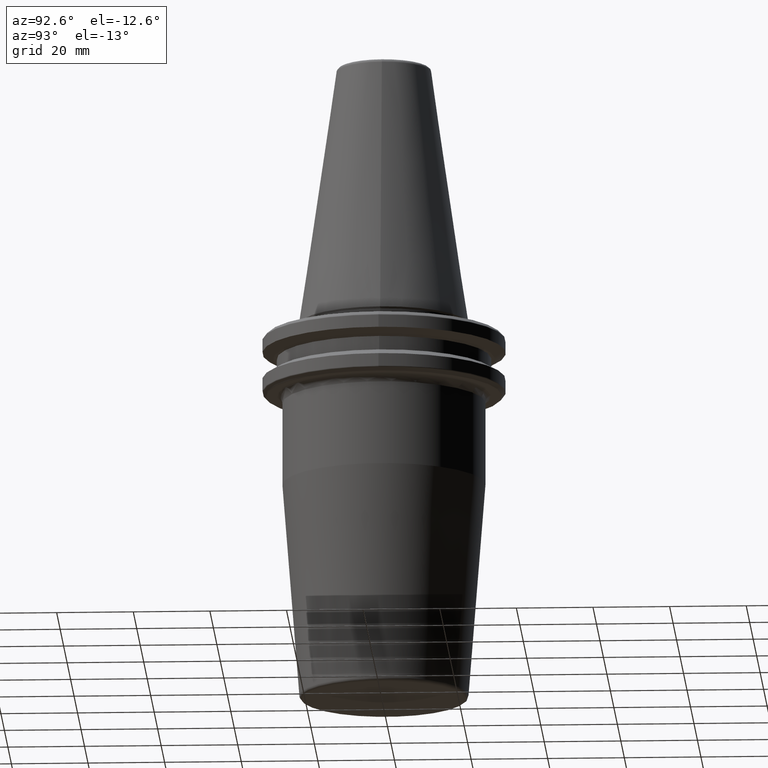
[diagram: clean part render]
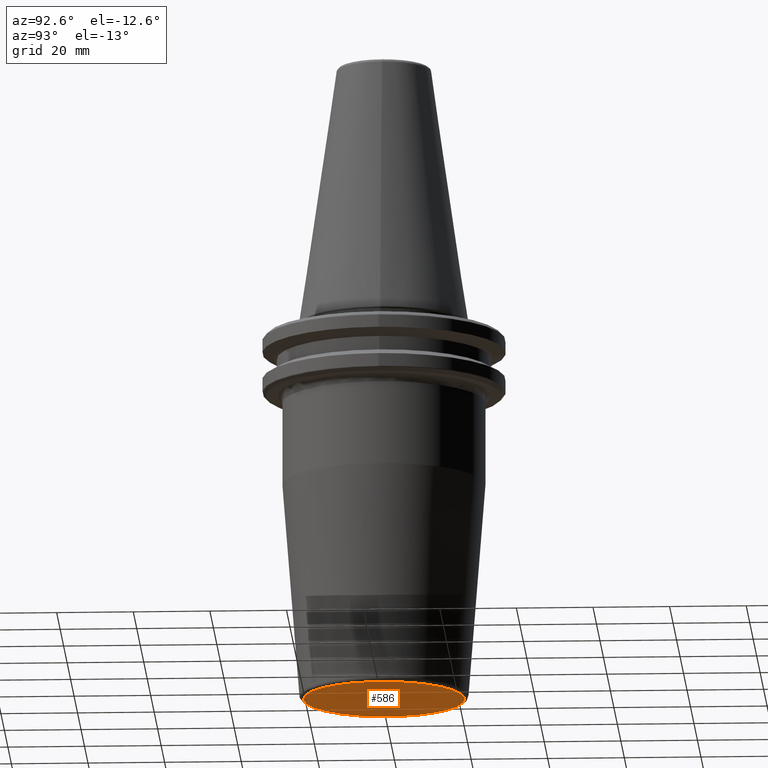
[diagram: same view with one face highlighted and labeled with its STEP entity id]
A machine part, auxiliary view. The second image highlights one B-rep face of the part: STEP entity #586.
In plain terms, the highlighted planar face has unit normal (-0, 0, -1).
Its self-contained STEP definition (entity closure, byte-faithful):
#35 = PLANE ( 'NONE',  #1033 ) ;
#92 = AXIS2_PLACEMENT_3D ( 'NONE', #789, #504, #149 ) ;
#133 = EDGE_LOOP ( 'NONE', ( #913, #206 ) ) ;
#136 = DIRECTION ( 'NONE',  ( 0.0000000000000000000, 1.000000000000000000, 0.0000000000000000000 ) ) ;
#148 = DIRECTION ( 'NONE',  ( -0.0000000000000000000, 2.433918356085496500E-016, -1.000000000000000000 ) ) ;
#149 = DIRECTION ( 'NONE',  ( 0.0000000000000000000, 1.000000000000000000, 0.0000000000000000000 ) ) ;
#206 = ORIENTED_EDGE ( 'NONE', *, *, #459, .T. ) ;
#254 = CARTESIAN_POINT ( 'NONE',  ( 2.642061353535568800E-015, -21.07560950834178500, -100.0000000000000000 ) ) ;
#282 = VERTEX_POINT ( 'NONE', #254 ) ;
#363 = VERTEX_POINT ( 'NONE', #613 ) ;
#371 = CIRCLE ( 'NONE', #92, 21.07560950834178800 ) ;
#446 = CARTESIAN_POINT ( 'NONE',  ( 0.0000000000000000000, 21.07560950834179200, -100.0000000000000000 ) ) ;
#459 = EDGE_CURVE ( 'NONE', #282, #363, #1046, .T. ) ;
#504 = DIRECTION ( 'NONE',  ( -0.0000000000000000000, 2.433918356085496500E-016, -1.000000000000000000 ) ) ;
#586 = ADVANCED_FACE ( 'NONE', ( #1205 ), #35, .T. ) ;
#608 = CARTESIAN_POINT ( 'NONE',  ( 0.0000000000000000000, 2.449293598294708500E-015, -100.0000000000000000 ) ) ;
#613 = CARTESIAN_POINT ( 'NONE',  ( 0.0000000000000000000, 21.07560950834179200, -100.0000000000000000 ) ) ;
#789 = CARTESIAN_POINT ( 'NONE',  ( 0.0000000000000000000, 2.449293598294708500E-015, -100.0000000000000000 ) ) ;
#834 = AXIS2_PLACEMENT_3D ( 'NONE', #608, #148, #136 ) ;
#849 = DIRECTION ( 'NONE',  ( 0.0000000000000000000, 1.000000000000000000, 2.433918356085496500E-016 ) ) ;
#912 = DIRECTION ( 'NONE',  ( -0.0000000000000000000, 2.433918356085496500E-016, -1.000000000000000000 ) ) ;
#913 = ORIENTED_EDGE ( 'NONE', *, *, #1100, .T. ) ;
#1033 = AXIS2_PLACEMENT_3D ( 'NONE', #446, #912, #849 ) ;
#1046 = CIRCLE ( 'NONE', #834, 21.07560950834178800 ) ;
#1100 = EDGE_CURVE ( 'NONE', #363, #282, #371, .T. ) ;
#1205 = FACE_OUTER_BOUND ( 'NONE', #133, .T. ) ;